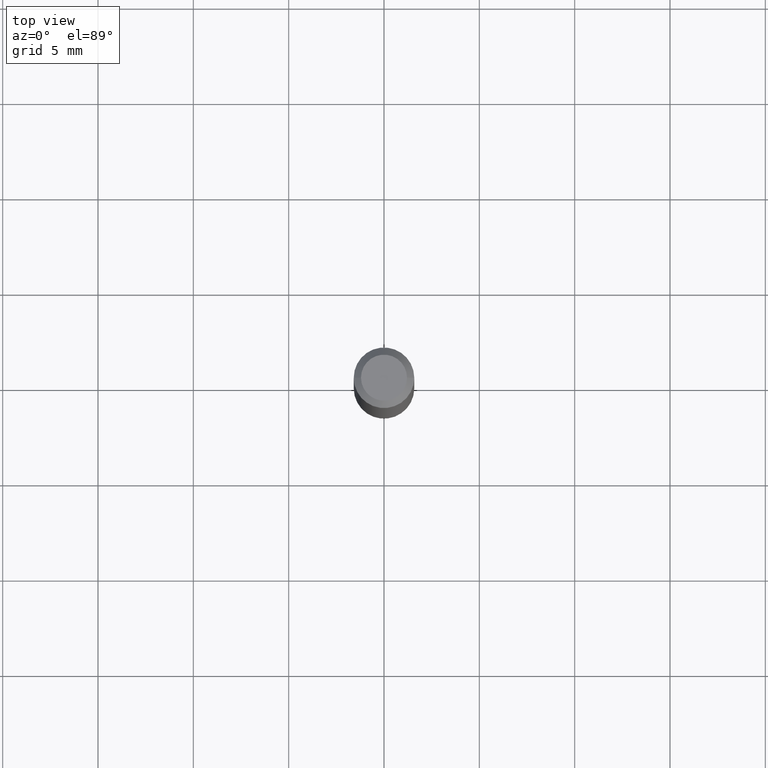
[diagram: clean part render]
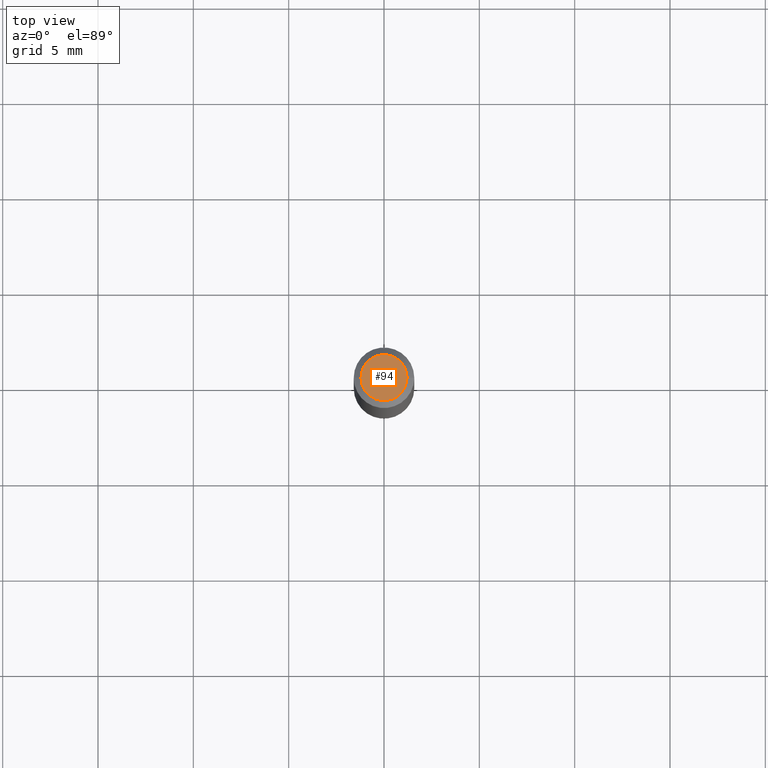
[diagram: same view with one face highlighted and labeled with its STEP entity id]
A machine part, top view. The second image highlights one B-rep face of the part: STEP entity #94.
In plain terms, the highlighted planar face has unit normal (0, -0, -1).
Its self-contained STEP definition (entity closure, byte-faithful):
#6 = VERTEX_POINT ( 'NONE', #157 ) ;
#16 = PLANE ( 'NONE',  #145 ) ;
#17 = CIRCLE ( 'NONE', #374, 0.04749999999999999362 ) ;
#71 = EDGE_CURVE ( 'NONE', #6, #260, #309, .T. ) ;
#94 = ADVANCED_FACE ( 'NONE', ( #198 ), #16, .F. ) ;
#107 = AXIS2_PLACEMENT_3D ( 'NONE', #305, #384, #443 ) ;
#119 = EDGE_LOOP ( 'NONE', ( #188, #199 ) ) ;
#131 = DIRECTION ( 'NONE',  ( -2.445468806185136597E-29, 3.491481338843145583E-15, 1.000000000000000000 ) ) ;
#145 = AXIS2_PLACEMENT_3D ( 'NONE', #163, #335, #307 ) ;
#157 = CARTESIAN_POINT ( 'NONE',  ( -0.04749999999999999362, 3.578768372314186347E-16, -1.404502872476254025E-15 ) ) ;
#163 = CARTESIAN_POINT ( 'NONE',  ( 3.316907271900976096E-16, 0.04749999999999999362, -8.680967998331751761E-16 ) ) ;
#188 = ORIENTED_EDGE ( 'NONE', *, *, #71, .T. ) ;
#198 = FACE_OUTER_BOUND ( 'NONE', #119, .T. ) ;
#199 = ORIENTED_EDGE ( 'NONE', *, *, #203, .T. ) ;
#203 = EDGE_CURVE ( 'NONE', #260, #6, #17, .T. ) ;
#260 = VERTEX_POINT ( 'NONE', #458 ) ;
#305 = CARTESIAN_POINT ( 'NONE',  ( 3.434667962838094334E-44, -4.903795569602426839E-30, -1.404502872476251461E-15 ) ) ;
#307 = DIRECTION ( 'NONE',  ( -1.000000000000000000, 6.982962677686265922E-15, -4.876176775795935793E-29 ) ) ;
#309 = CIRCLE ( 'NONE', #107, 0.04749999999999999362 ) ;
#315 = CARTESIAN_POINT ( 'NONE',  ( 3.434667962838094334E-44, -4.903795569602426839E-30, -1.404502872476251461E-15 ) ) ;
#317 = DIRECTION ( 'NONE',  ( 1.000000000000000000, -6.982962677686267499E-15, 5.108144071313017768E-29 ) ) ;
#335 = DIRECTION ( 'NONE',  ( 2.438088387897960049E-29, -3.491481338843145188E-15, -1.000000000000000000 ) ) ;
#374 = AXIS2_PLACEMENT_3D ( 'NONE', #315, #131, #317 ) ;
#384 = DIRECTION ( 'NONE',  ( -2.445468806185136597E-29, 3.491481338843145583E-15, 1.000000000000000000 ) ) ;
#443 = DIRECTION ( 'NONE',  ( 1.000000000000000000, -6.982962677686267499E-15, 5.108144071313017768E-29 ) ) ;
#458 = CARTESIAN_POINT ( 'NONE',  ( 0.04749999999999999362, -4.035134999187603275E-16, -1.404502872476248897E-15 ) ) ;